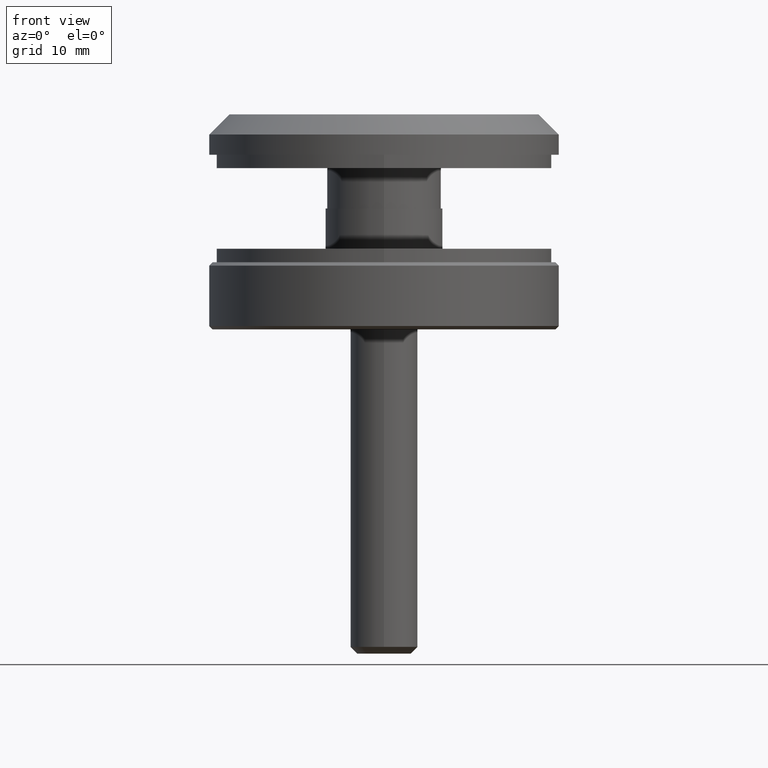
[diagram: clean part render]
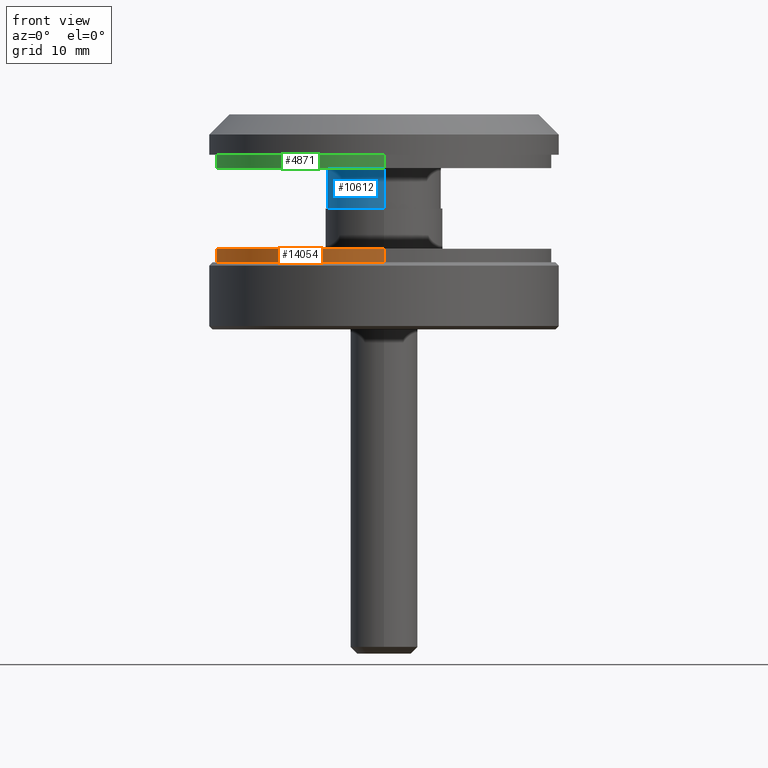
[diagram: same view with three faces highlighted in distinct colors, each labeled with its STEP entity id]
A machine part, front view with three faces highlighted in distinct colors.
Their STEP definitions:

[orange] entity #14054 — the highlighted cylindrical surface (partial cylindrical patch) has radius 25 mm, axis along (0, 0, 1).
#912 = AXIS2_PLACEMENT_3D ( 'NONE', #1464, #15557, #5268 ) ;
#1144 = EDGE_CURVE ( 'NONE', #3469, #11806, #14710, .T. ) ;
#1464 = CARTESIAN_POINT ( 'NONE',  ( 0.000000000000000000, 2.000000000000001776, 0.000000000000000000 ) ) ;
#1604 = VECTOR ( 'NONE', #9242, 1000.000000000000000 ) ;
#1789 = LINE ( 'NONE', #5393, #1604 ) ;
#2322 = FACE_OUTER_BOUND ( 'NONE', #15976, .T. ) ;
#2327 = DIRECTION ( 'NONE',  ( 0.000000000000000000, 0.000000000000000000, 1.000000000000000000 ) ) ;
#2667 = CARTESIAN_POINT ( 'NONE',  ( 0.000000000000000000, 0.000000000000000000, 0.000000000000000000 ) ) ;
#2729 = DIRECTION ( 'NONE',  ( 0.000000000000000000, 0.000000000000000000, 1.000000000000000000 ) ) ;
#3469 = VERTEX_POINT ( 'NONE', #5670 ) ;
#3848 = ORIENTED_EDGE ( 'NONE', *, *, #8791, .T. ) ;
#4554 = DIRECTION ( 'NONE',  ( 0.000000000000000000, -1.000000000000000000, 0.000000000000000000 ) ) ;
#4657 = EDGE_CURVE ( 'NONE', #15584, #7672, #1789, .T. ) ;
#5136 = CARTESIAN_POINT ( 'NONE',  ( 0.000000000000000000, 0.000000000000000000, -25.00000000000000000 ) ) ;
#5268 = DIRECTION ( 'NONE',  ( 0.000000000000000000, 0.000000000000000000, -1.000000000000000000 ) ) ;
#5393 = CARTESIAN_POINT ( 'NONE',  ( 3.061616997868383043E-15, 2.000000000000001776, 25.00000000000000000 ) ) ;
#5610 = AXIS2_PLACEMENT_3D ( 'NONE', #16469, #7620, #2327 ) ;
#5670 = CARTESIAN_POINT ( 'NONE',  ( 0.000000000000000000, 2.000000000000001776, -25.00000000000000000 ) ) ;
#6197 = CARTESIAN_POINT ( 'NONE',  ( 3.061616997868383043E-15, 2.000000000000001776, 25.00000000000000000 ) ) ;
#7620 = DIRECTION ( 'NONE',  ( 0.000000000000000000, 1.000000000000000000, 0.000000000000000000 ) ) ;
#7672 = VERTEX_POINT ( 'NONE', #11336 ) ;
#8193 = CARTESIAN_POINT ( 'NONE',  ( 0.000000000000000000, 2.000000000000001776, -25.00000000000000000 ) ) ;
#8652 = ORIENTED_EDGE ( 'NONE', *, *, #1144, .T. ) ;
#8791 = EDGE_CURVE ( 'NONE', #11806, #7672, #9147, .T. ) ;
#9147 = CIRCLE ( 'NONE', #13462, 25.00000000000000000 ) ;
#9242 = DIRECTION ( 'NONE',  ( 0.000000000000000000, -1.000000000000000000, 0.000000000000000000 ) ) ;
#10090 = ORIENTED_EDGE ( 'NONE', *, *, #10866, .F. ) ;
#10866 = EDGE_CURVE ( 'NONE', #3469, #15584, #15738, .T. ) ;
#11083 = VECTOR ( 'NONE', #4554, 1000.000000000000000 ) ;
#11336 = CARTESIAN_POINT ( 'NONE',  ( 3.061616997868383043E-15, 0.000000000000000000, 25.00000000000000000 ) ) ;
#11747 = CYLINDRICAL_SURFACE ( 'NONE', #912, 25.00000000000000000 ) ;
#11806 = VERTEX_POINT ( 'NONE', #5136 ) ;
#12321 = ORIENTED_EDGE ( 'NONE', *, *, #4657, .F. ) ;
#13462 = AXIS2_PLACEMENT_3D ( 'NONE', #2667, #15655, #2729 ) ;
#14054 = ADVANCED_FACE ( 'NONE', ( #2322 ), #11747, .T. ) ;
#14710 = LINE ( 'NONE', #8193, #11083 ) ;
#15557 = DIRECTION ( 'NONE',  ( 0.000000000000000000, -1.000000000000000000, 0.000000000000000000 ) ) ;
#15584 = VERTEX_POINT ( 'NONE', #6197 ) ;
#15655 = DIRECTION ( 'NONE',  ( 0.000000000000000000, 1.000000000000000000, 0.000000000000000000 ) ) ;
#15738 = CIRCLE ( 'NONE', #5610, 25.00000000000000000 ) ;
#15976 = EDGE_LOOP ( 'NONE', ( #12321, #10090, #8652, #3848 ) ) ;
#16469 = CARTESIAN_POINT ( 'NONE',  ( 0.000000000000000000, 2.000000000000001776, 0.000000000000000000 ) ) ;

[blue] entity #10612 — the highlighted cylindrical surface (partial cylindrical patch) has radius 8.5 mm, axis along (0, 0, 1).
#980 = VERTEX_POINT ( 'NONE', #5217 ) ;
#1043 = EDGE_LOOP ( 'NONE', ( #8097, #8248, #3301, #14740 ) ) ;
#2458 = CIRCLE ( 'NONE', #14653, 8.499999999999960920 ) ;
#2550 = CARTESIAN_POINT ( 'NONE',  ( 0.000000000000000000, 7.999999999999930722, 0.000000000000000000 ) ) ;
#3103 = EDGE_CURVE ( 'NONE', #9281, #980, #8029, .T. ) ;
#3267 = VECTOR ( 'NONE', #10832, 1000.000000000000000 ) ;
#3301 = ORIENTED_EDGE ( 'NONE', *, *, #9447, .T. ) ;
#3665 = CARTESIAN_POINT ( 'NONE',  ( 0.000000000000000000, 7.999999999999930722, -8.500000000000000000 ) ) ;
#4765 = AXIS2_PLACEMENT_3D ( 'NONE', #2550, #11468, #16593 ) ;
#4840 = CARTESIAN_POINT ( 'NONE',  ( 1.040949779275245407E-15, 1.999999999999980904, 8.500000000000000000 ) ) ;
#4974 = VERTEX_POINT ( 'NONE', #10702 ) ;
#5217 = CARTESIAN_POINT ( 'NONE',  ( 1.040949779275245407E-15, 7.999999999999930722, 8.500000000000000000 ) ) ;
#5284 = CARTESIAN_POINT ( 'NONE',  ( 0.000000000000000000, 1.999999999999980904, 0.000000000000000000 ) ) ;
#6449 = DIRECTION ( 'NONE',  ( 0.000000000000000000, 1.000000000000000000, 0.000000000000000000 ) ) ;
#7066 = LINE ( 'NONE', #15577, #3267 ) ;
#8029 = CIRCLE ( 'NONE', #14680, 8.499999999999960920 ) ;
#8097 = ORIENTED_EDGE ( 'NONE', *, *, #10970, .F. ) ;
#8248 = ORIENTED_EDGE ( 'NONE', *, *, #3103, .F. ) ;
#8498 = CARTESIAN_POINT ( 'NONE',  ( 0.000000000000000000, 7.999999999999930722, 0.000000000000000000 ) ) ;
#9083 = DIRECTION ( 'NONE',  ( 0.000000000000000000, 0.000000000000000000, 1.000000000000000000 ) ) ;
#9281 = VERTEX_POINT ( 'NONE', #3665 ) ;
#9376 = EDGE_CURVE ( 'NONE', #4974, #16037, #2458, .T. ) ;
#9447 = EDGE_CURVE ( 'NONE', #9281, #4974, #7066, .T. ) ;
#10077 = LINE ( 'NONE', #11346, #10899 ) ;
#10612 = ADVANCED_FACE ( 'NONE', ( #16136 ), #13923, .T. ) ;
#10702 = CARTESIAN_POINT ( 'NONE',  ( 0.000000000000000000, 1.999999999999980904, -8.500000000000000000 ) ) ;
#10832 = DIRECTION ( 'NONE',  ( 0.000000000000000000, -1.000000000000000000, 0.000000000000000000 ) ) ;
#10899 = VECTOR ( 'NONE', #12747, 1000.000000000000000 ) ;
#10970 = EDGE_CURVE ( 'NONE', #980, #16037, #10077, .T. ) ;
#11346 = CARTESIAN_POINT ( 'NONE',  ( 1.040949779275240673E-15, 7.999999999999930722, 8.499999999999960920 ) ) ;
#11468 = DIRECTION ( 'NONE',  ( 0.000000000000000000, -1.000000000000000000, 0.000000000000000000 ) ) ;
#12747 = DIRECTION ( 'NONE',  ( 0.000000000000000000, -1.000000000000000000, 0.000000000000000000 ) ) ;
#13923 = CYLINDRICAL_SURFACE ( 'NONE', #4765, 8.499999999999960920 ) ;
#14653 = AXIS2_PLACEMENT_3D ( 'NONE', #5284, #6449, #9083 ) ;
#14680 = AXIS2_PLACEMENT_3D ( 'NONE', #8498, #14983, #15044 ) ;
#14740 = ORIENTED_EDGE ( 'NONE', *, *, #9376, .T. ) ;
#14983 = DIRECTION ( 'NONE',  ( 0.000000000000000000, 1.000000000000000000, 0.000000000000000000 ) ) ;
#15044 = DIRECTION ( 'NONE',  ( 0.000000000000000000, 0.000000000000000000, 1.000000000000000000 ) ) ;
#15577 = CARTESIAN_POINT ( 'NONE',  ( 0.000000000000000000, 7.999999999999930722, -8.499999999999960920 ) ) ;
#16037 = VERTEX_POINT ( 'NONE', #4840 ) ;
#16136 = FACE_OUTER_BOUND ( 'NONE', #1043, .T. ) ;
#16593 = DIRECTION ( 'NONE',  ( 0.000000000000000000, 0.000000000000000000, -1.000000000000000000 ) ) ;

[green] entity #4871 — the highlighted cylindrical surface (partial cylindrical patch) has radius 25 mm, axis along (0, 0, 1).
#167 = DIRECTION ( 'NONE',  ( 0.000000000000000000, 0.000000000000000000, 1.000000000000000000 ) ) ;
#577 = CARTESIAN_POINT ( 'NONE',  ( 0.000000000000000000, 1.999999999999980904, 0.000000000000000000 ) ) ;
#827 = CARTESIAN_POINT ( 'NONE',  ( 0.000000000000000000, 0.000000000000000000, 0.000000000000000000 ) ) ;
#984 = CARTESIAN_POINT ( 'NONE',  ( 3.061616997868368843E-15, 1.999999999999980904, 25.00000000000000000 ) ) ;
#1151 = VERTEX_POINT ( 'NONE', #984 ) ;
#3355 = EDGE_CURVE ( 'NONE', #1151, #14571, #13876, .T. ) ;
#3629 = ORIENTED_EDGE ( 'NONE', *, *, #6845, .T. ) ;
#3875 = VERTEX_POINT ( 'NONE', #5175 ) ;
#4871 = ADVANCED_FACE ( 'NONE', ( #11426 ), #14057, .T. ) ;
#4932 = VERTEX_POINT ( 'NONE', #11947 ) ;
#5175 = CARTESIAN_POINT ( 'NONE',  ( 0.000000000000000000, 1.999999999999980904, -25.00000000000000000 ) ) ;
#5288 = CIRCLE ( 'NONE', #7803, 24.99999999999988276 ) ;
#5700 = EDGE_CURVE ( 'NONE', #3875, #1151, #5288, .T. ) ;
#5740 = CARTESIAN_POINT ( 'NONE',  ( 3.061616997868368843E-15, 0.000000000000000000, 25.00000000000000000 ) ) ;
#5847 = DIRECTION ( 'NONE',  ( 0.000000000000000000, 0.000000000000000000, 1.000000000000000000 ) ) ;
#6012 = CARTESIAN_POINT ( 'NONE',  ( 0.000000000000000000, 1.999999999999980904, -24.99999999999988276 ) ) ;
#6845 = EDGE_CURVE ( 'NONE', #3875, #4932, #10345, .T. ) ;
#7803 = AXIS2_PLACEMENT_3D ( 'NONE', #11777, #9177, #167 ) ;
#7877 = AXIS2_PLACEMENT_3D ( 'NONE', #827, #16245, #5847 ) ;
#8983 = ORIENTED_EDGE ( 'NONE', *, *, #15955, .T. ) ;
#9177 = DIRECTION ( 'NONE',  ( 0.000000000000000000, 1.000000000000000000, 0.000000000000000000 ) ) ;
#9300 = DIRECTION ( 'NONE',  ( 0.000000000000000000, -1.000000000000000000, 0.000000000000000000 ) ) ;
#9849 = AXIS2_PLACEMENT_3D ( 'NONE', #577, #9300, #15844 ) ;
#10345 = LINE ( 'NONE', #6012, #14194 ) ;
#10900 = DIRECTION ( 'NONE',  ( 0.000000000000000000, -1.000000000000000000, 0.000000000000000000 ) ) ;
#11426 = FACE_OUTER_BOUND ( 'NONE', #13000, .T. ) ;
#11777 = CARTESIAN_POINT ( 'NONE',  ( 0.000000000000000000, 1.999999999999980904, 0.000000000000000000 ) ) ;
#11947 = CARTESIAN_POINT ( 'NONE',  ( 0.000000000000000000, 0.000000000000000000, -25.00000000000000000 ) ) ;
#11995 = ORIENTED_EDGE ( 'NONE', *, *, #5700, .F. ) ;
#13000 = EDGE_LOOP ( 'NONE', ( #13815, #11995, #3629, #8983 ) ) ;
#13815 = ORIENTED_EDGE ( 'NONE', *, *, #3355, .F. ) ;
#13876 = LINE ( 'NONE', #15567, #14272 ) ;
#14057 = CYLINDRICAL_SURFACE ( 'NONE', #9849, 24.99999999999988276 ) ;
#14194 = VECTOR ( 'NONE', #10900, 1000.000000000000000 ) ;
#14272 = VECTOR ( 'NONE', #15508, 1000.000000000000000 ) ;
#14571 = VERTEX_POINT ( 'NONE', #5740 ) ;
#15508 = DIRECTION ( 'NONE',  ( 0.000000000000000000, -1.000000000000000000, 0.000000000000000000 ) ) ;
#15567 = CARTESIAN_POINT ( 'NONE',  ( 3.061616997868354644E-15, 1.999999999999980904, 24.99999999999988276 ) ) ;
#15844 = DIRECTION ( 'NONE',  ( 0.000000000000000000, 0.000000000000000000, -1.000000000000000000 ) ) ;
#15955 = EDGE_CURVE ( 'NONE', #4932, #14571, #16460, .T. ) ;
#16245 = DIRECTION ( 'NONE',  ( 0.000000000000000000, 1.000000000000000000, 0.000000000000000000 ) ) ;
#16460 = CIRCLE ( 'NONE', #7877, 24.99999999999988276 ) ;